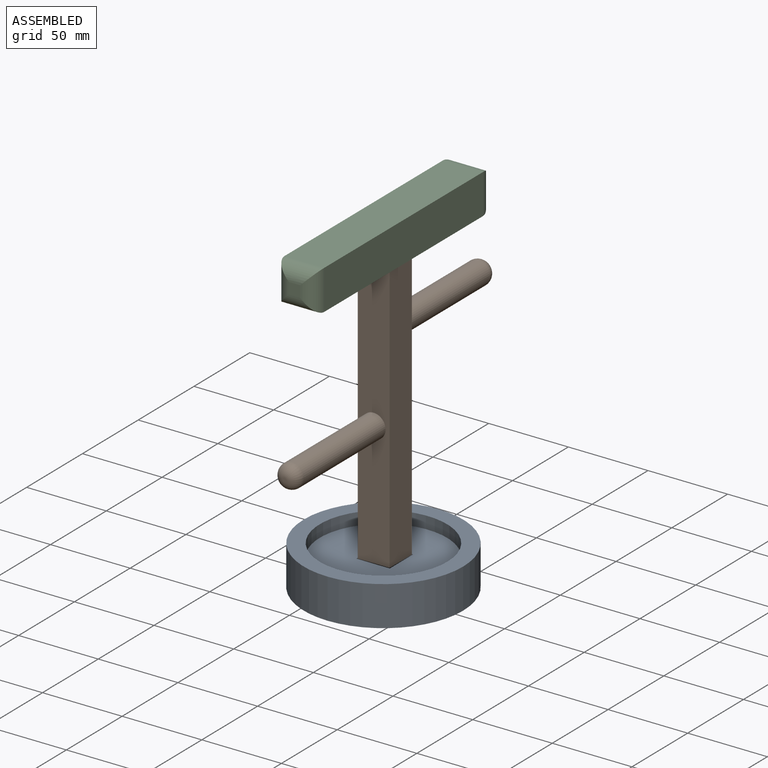
[diagram: assembled view]
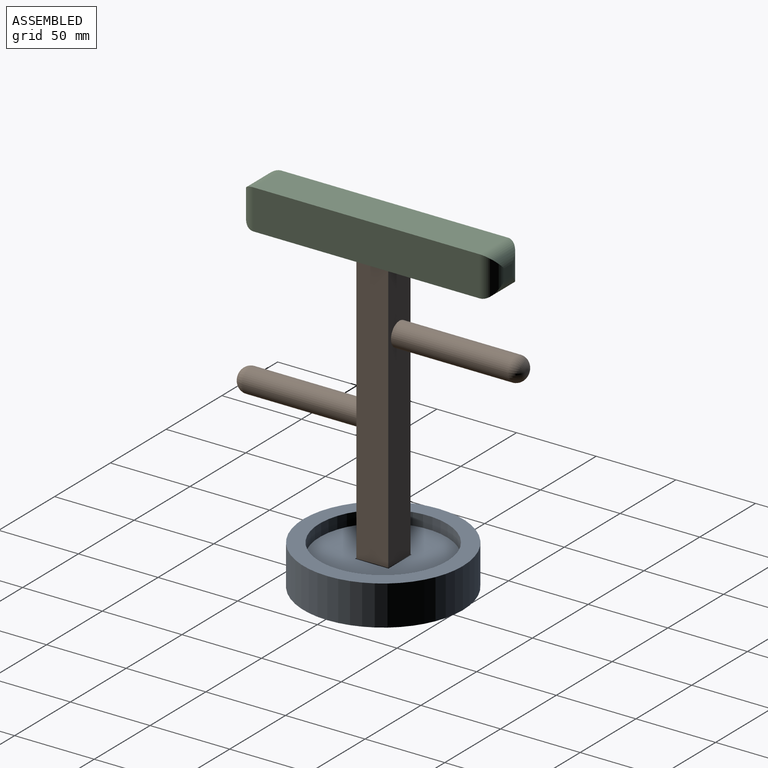
[diagram: assembled view, second angle]
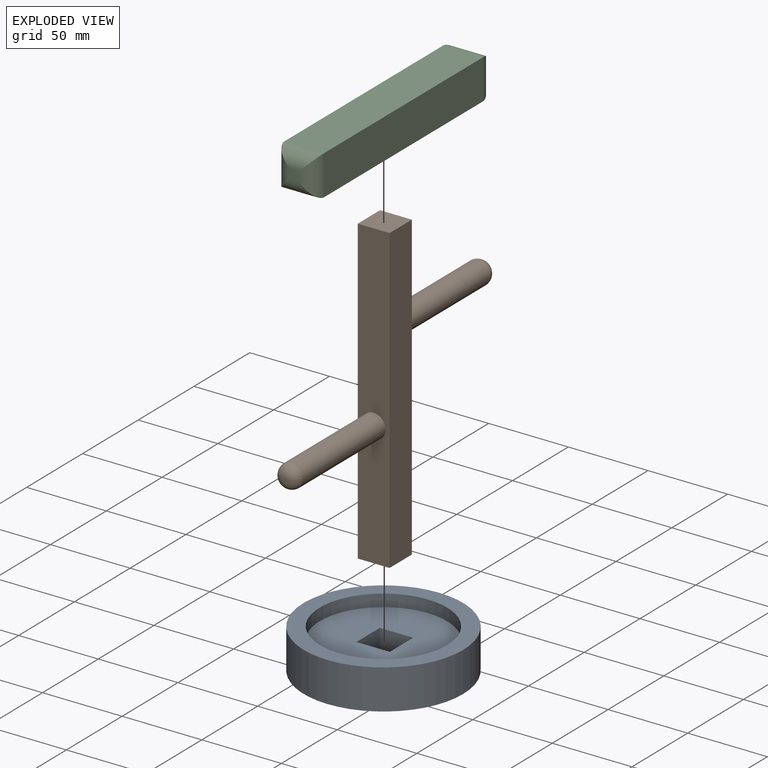
[diagram: exploded view]
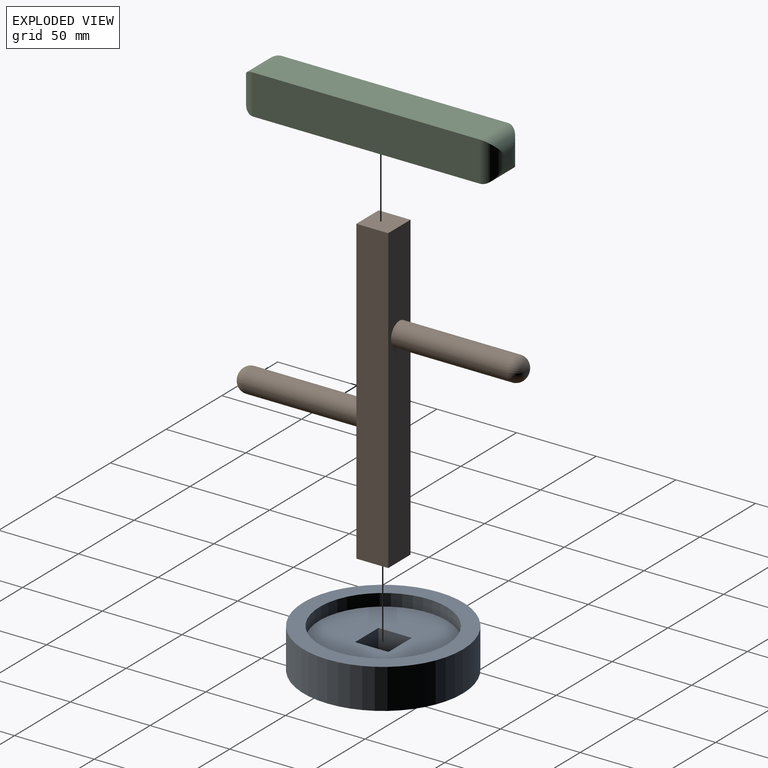
[diagram: exploded view, second angle]
ASSEMBLY  parts=3 mates=2
PART A: 10 faces, bbox 100x100x25 mm
  f0: plane 80x80mm, normal (0,0,1), area 4585.5mm2, adj f4,f5,f6,f7,f8
  f1: cylinder r=50mm len=100mm, axis (0,0,-1), area 7854mm2, adj f2,f3
  f2: plane 100x100mm, normal (0,0,1), area 2827.4mm2, adj f1,f4
  f3: plane 100x100mm, normal (0,0,-1), area 7854mm2, adj f1
  f4: cylinder r=40mm len=80mm, axis (0,0,1), area 1935.2mm2, adj f0,f2
  f5: plane 21x12.5mm, normal (1,0,0), area 262.5mm2, adj f0,f6,f8,f9
  f6: plane 21x12.5mm, normal (0,1,0), area 262.5mm2, adj f0,f5,f7,f9
  f7: plane 21x12.5mm, normal (-1,0,0), area 262.5mm2, adj f0,f6,f8,f9
  f8: plane 21x12.5mm, normal (0,-1,0), area 262.5mm2, adj f0,f5,f7,f9
  f9: plane 21x21mm, normal (0,0,1), area 441mm2, adj f5,f6,f7,f8
PART B: 12 faces, bbox 20x180x190 mm
  f0: plane 190x20mm, normal (0,1,0), area 3623.3mm2, adj f1,f3,f4,f5,f8
  f1: plane 190x20mm, normal (-1,0,0), area 3800mm2, adj f0,f2,f4,f5
  f2: plane 190x20mm, normal (0,-1,0), area 3623.3mm2, adj f1,f3,f4,f5,f6
  f3: plane 190x20mm, normal (1,0,0), area 3800mm2, adj f0,f2,f4,f5
  f4: plane 20x20mm, normal (0,0,1), area 400mm2, adj f0,f1,f2,f3
  f5: plane 20x20mm, normal (0,0,-1), area 400mm2, adj f0,f1,f2,f3
  f6: cylinder r=7.5mm len=73.48mm, axis (0,1,0), area 3462.7mm2, adj f2,f10
  f7: plane 1.96x1.96mm, normal (0,-1,0), area 3mm2, adj f10
  f8: cylinder r=7.5mm len=73.48mm, axis (0,-1,0), area 3462.7mm2, adj f0,f11
  f9: plane 1.96x1.96mm, normal (0,1,0), area 3mm2, adj f11
  f10: torus R=0.98mm, axis (0,-1,0), area 330.1mm2, adj f6,f7
  f11: torus R=0.98mm, axis (0,1,0), area 330.2mm2, adj f8,f9
PART C: 19 faces, bbox 25x25x160 mm
  f0: plane 142.14x25mm, normal (-1,0,0), area 3112.4mm2, adj f1,f3,f6,f7,f8,f9,f11,f15
  f1: plane 142.14x25mm, normal (0,-1,0), area 3553.4mm2, adj f0,f2,f12,f16
  f2: plane 142.14x25mm, normal (1,0,0), area 3553.4mm2, adj f1,f3,f14,f18
  f3: plane 142.14x25mm, normal (0,1,0), area 3553.4mm2, adj f0,f2,f13,f17
  f4: plane 7.14x7.14mm, normal (0,0,1), area 50.9mm2, adj f11,f12,f13,f14
  f5: plane 7.14x7.14mm, normal (0,0,-1), area 51mm2, adj f15,f16,f17,f18
  f6: plane 21x20mm, normal (0,-1,0), area 420mm2, adj f0,f7,f9,f10
  f7: plane 21x20mm, normal (0,0,1), area 420mm2, adj f0,f6,f8,f10
  f8: plane 21x20mm, normal (0,1,0), area 420mm2, adj f0,f7,f9,f10
  f9: plane 21x20mm, normal (0,0,-1), area 420mm2, adj f0,f6,f8,f10
  f10: plane 21x21mm, normal (-1,0,0), area 441mm2, adj f6,f7,f8,f9
  f11: cylinder r=8.93mm len=25mm, axis (0,1,0), area 259.7mm2, adj f0,f4,f12,f13
  f12: cylinder r=8.93mm len=25mm, axis (-1,0,0), area 259.7mm2, adj f1,f4,f11,f14
  f13: cylinder r=8.93mm len=25mm, axis (1,0,0), area 259.7mm2, adj f3,f4,f11,f14
  f14: cylinder r=8.93mm len=25mm, axis (0,-1,0), area 259.7mm2, adj f2,f4,f12,f13
  f15: cylinder r=8.93mm len=25mm, axis (0,-1,0), area 259.6mm2, adj f0,f5,f16,f17
  f16: cylinder r=8.93mm len=25mm, axis (1,0,0), area 259.6mm2, adj f1,f5,f15,f18
  f17: cylinder r=8.93mm len=25mm, axis (-1,0,0), area 259.6mm2, adj f3,f5,f15,f18
  f18: cylinder r=8.93mm len=25mm, axis (0,1,0), area 259.6mm2, adj f2,f5,f16,f17
PLACE A t=(-66.4,-235.11,-134.15)mm
PLACE B t=(-65.9,-234.61,-116.85)mm
PLACE C rot(axis=(-0.58,-0.58,-0.58),120deg) t=(-68.02,-316.16,63.15)mm
MATE fastened B.f5 <-> A.f0  axis (0,0,-1) through (-65.9,-234.61,-116.85)mm
MATE fastened C.f10 <-> B.f4  axis (0,0,-1) through (-65.9,-234.61,73.15)mm
